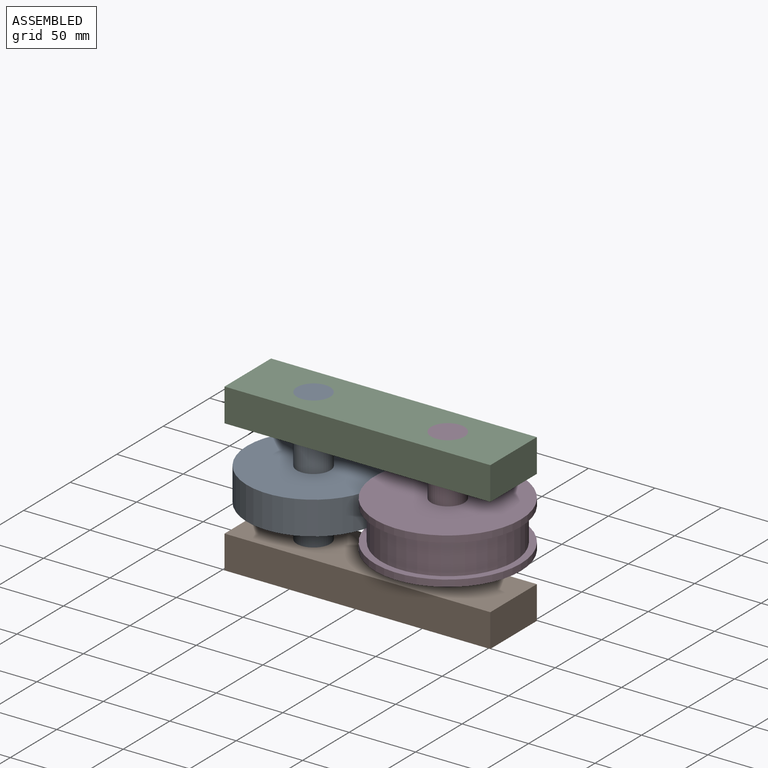
[diagram: assembled view]
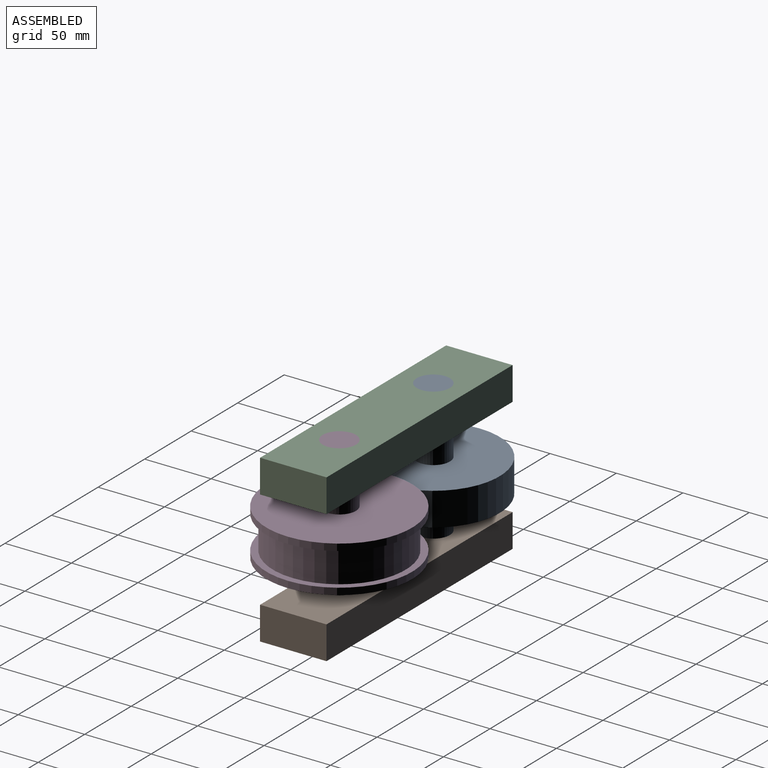
[diagram: assembled view, second angle]
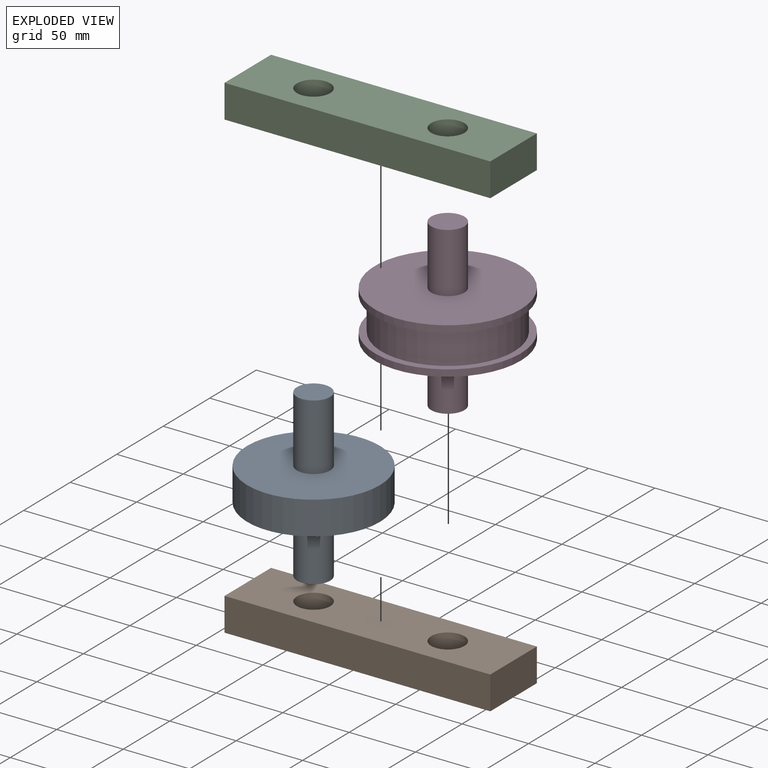
[diagram: exploded view]
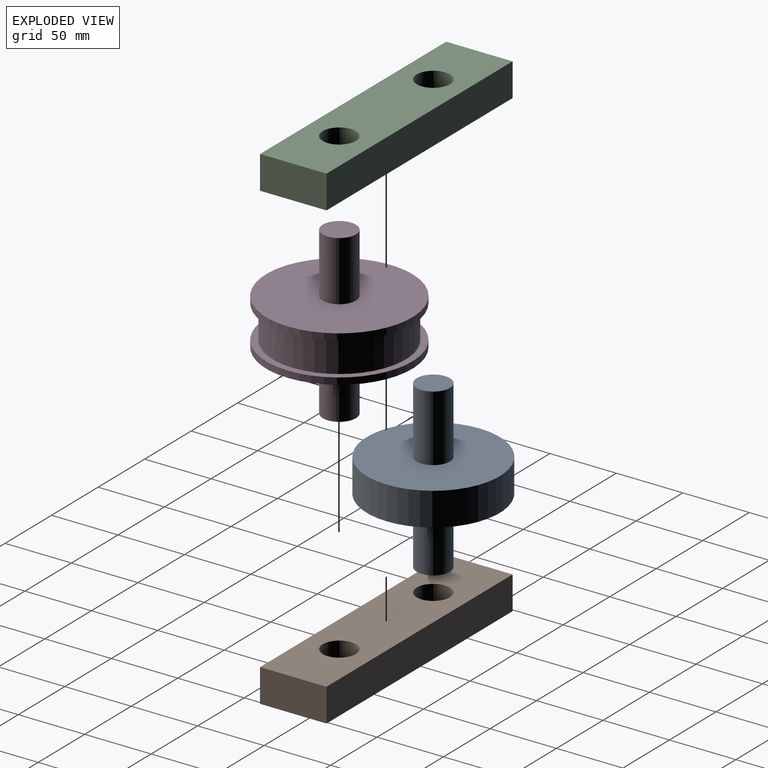
[diagram: exploded view, second angle]
ASSEMBLY  parts=4 mates=4
PART A: 7 faces, bbox 100x100x125 mm
  f0: cylinder r=50mm len=100mm, axis (0,0,-1), area 7854mm2, adj f1,f2
  f1: plane 100x100mm, normal (0,0,1), area 7363.1mm2, adj f0,f3
  f2: plane 100x100mm, normal (0,0,-1), area 7363.1mm2, adj f0,f5
  f3: cylinder r=12.5mm len=50mm, axis (0,0,-1), area 3927mm2, adj f1,f4
  f4: plane 25x25mm, normal (0,0,1), area 490.9mm2, adj f3
  f5: cylinder r=12.5mm len=50mm, axis (0,0,1), area 3927mm2, adj f2,f6
  f6: plane 25x25mm, normal (0,0,-1), area 490.9mm2, adj f5
PART B: 8 faces, bbox 200x50x25 mm
  f0: plane 200x25mm, normal (0,1,0), area 5000mm2, adj f1,f3,f4,f5
  f1: plane 50x25mm, normal (-1,0,0), area 1250mm2, adj f0,f2,f4,f5
  f2: plane 200x25mm, normal (0,-1,0), area 5000mm2, adj f1,f3,f4,f5
  f3: plane 50x25mm, normal (1,0,0), area 1250mm2, adj f0,f2,f4,f5
  f4: plane 200x50mm, normal (0,0,1), area 9018.3mm2, adj f0,f1,f2,f3,f6,f7
  f5: plane 200x50mm, normal (0,0,-1), area 9018.3mm2, adj f0,f1,f2,f3,f6,f7
  f6: cylinder r=12.5mm len=25mm, axis (0,0,1), area 1963.5mm2, adj f4,f5
  f7: cylinder r=12.5mm len=25mm, axis (0,0,1), area 1963.5mm2, adj f4,f5
PART C: same geometry as B
PART D: 11 faces, bbox 110x110x125 mm
  f0: cylinder r=50mm len=100mm, axis (0,0,-1), area 7854mm2, adj f3,f6
  f1: cylinder r=55mm len=110mm, axis (0,0,-1), area 1727.9mm2, adj f2,f3
  f2: plane 110x110mm, normal (0,0,1), area 9012.4mm2, adj f1,f9
  f3: plane 110x110mm, normal (0,0,-1), area 1649.3mm2, adj f0,f1
  f4: cylinder r=55mm len=110mm, axis (0,0,1), area 1727.9mm2, adj f5,f6
  f5: plane 110x110mm, normal (0,0,-1), area 9012.4mm2, adj f4,f7
  f6: plane 110x110mm, normal (0,0,1), area 1649.3mm2, adj f0,f4
  f7: cylinder r=12.5mm len=45mm, axis (0,0,1), area 3534.3mm2, adj f5,f8
  f8: plane 25x25mm, normal (0,0,-1), area 490.9mm2, adj f7
  f9: cylinder r=12.5mm len=45mm, axis (0,0,-1), area 3534.3mm2, adj f2,f10
  f10: plane 25x25mm, normal (0,0,1), area 490.9mm2, adj f9
PLACE A t=(8.11,43.01,-55.22)mm
PLACE B t=(-41.39,68.01,-105.22)mm
PLACE C t=(-41.39,68.01,-5.22)mm
PLACE D t=(126.85,43.01,-55.22)mm
MATE fastened C.f6 <-> D.f1  axis (0,0,1) through (109.11,43.01,19.78)mm
MATE fastened C.f7 <-> A.f3  axis (0,0,1) through (8.11,43.01,19.78)mm
MATE fastened A.f3 <-> B.f7  axis (0,0,-1) through (8.11,43.01,-105.22)mm
MATE fastened B.f6 <-> D.f1  axis (0,0,-1) through (109.11,43.01,-105.22)mm
